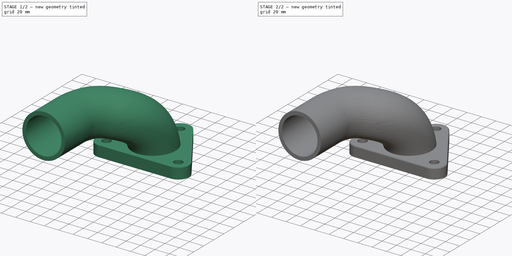
[diagram: build sequence overview — one tinted view per stage of 2, left to right]
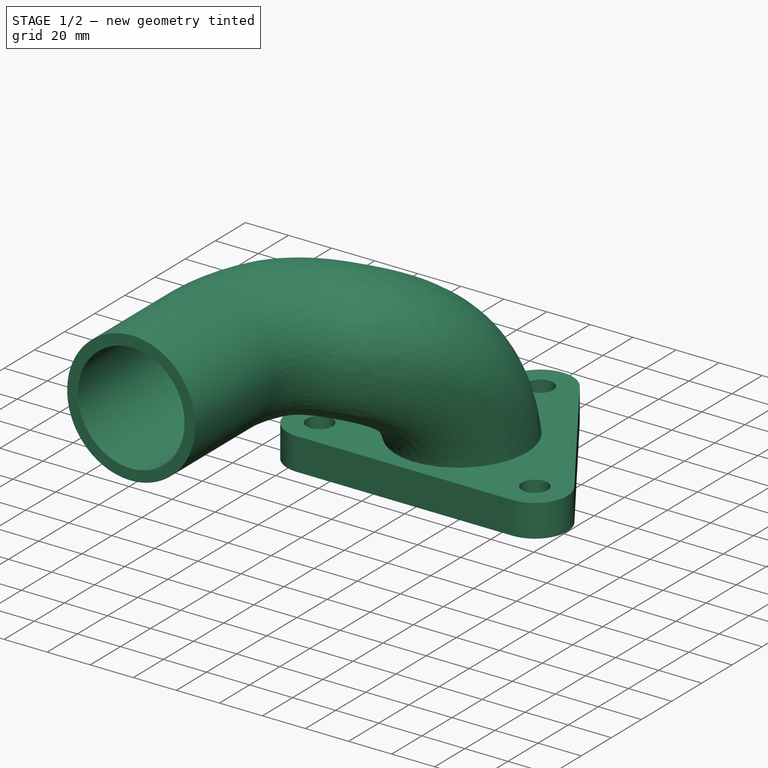
[diagram: stage 1 of 2 — iso view after this stage's code; geometry added in this stage tinted green]
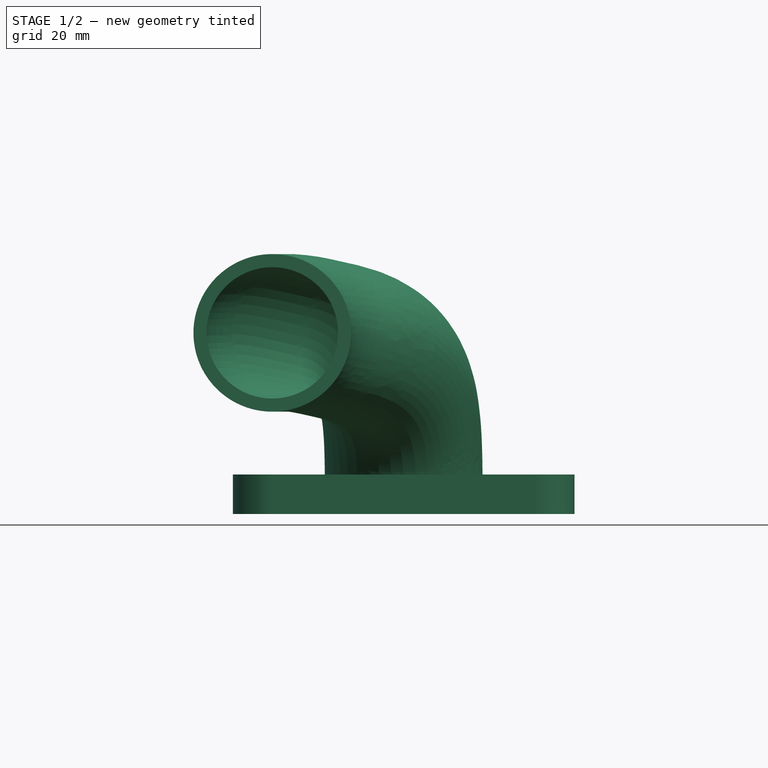
[diagram: stage 1 of 2 — front view after this stage's code; geometry added in this stage tinted green]
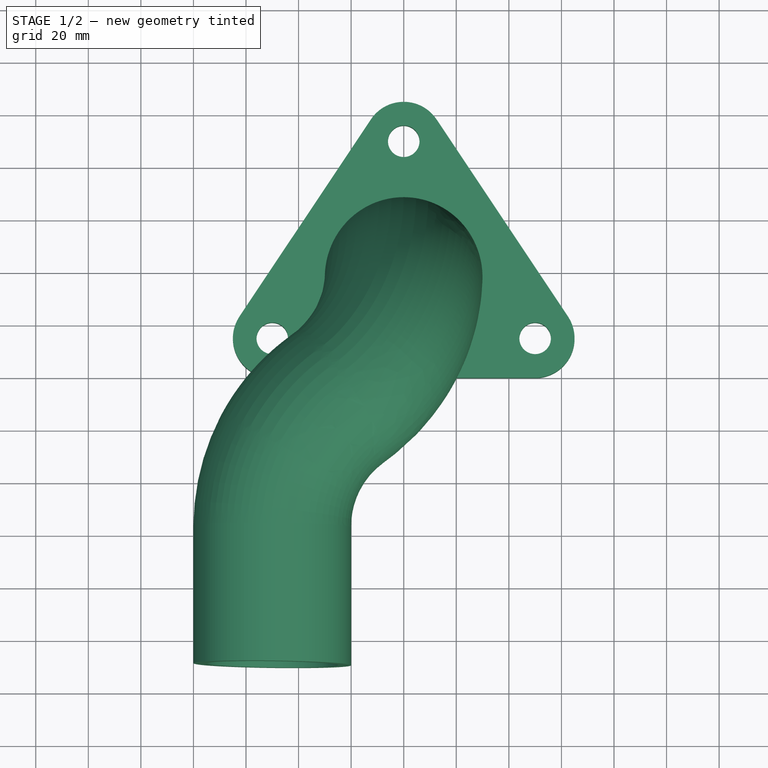
[diagram: stage 1 of 2 — top view after this stage's code; geometry added in this stage tinted green]
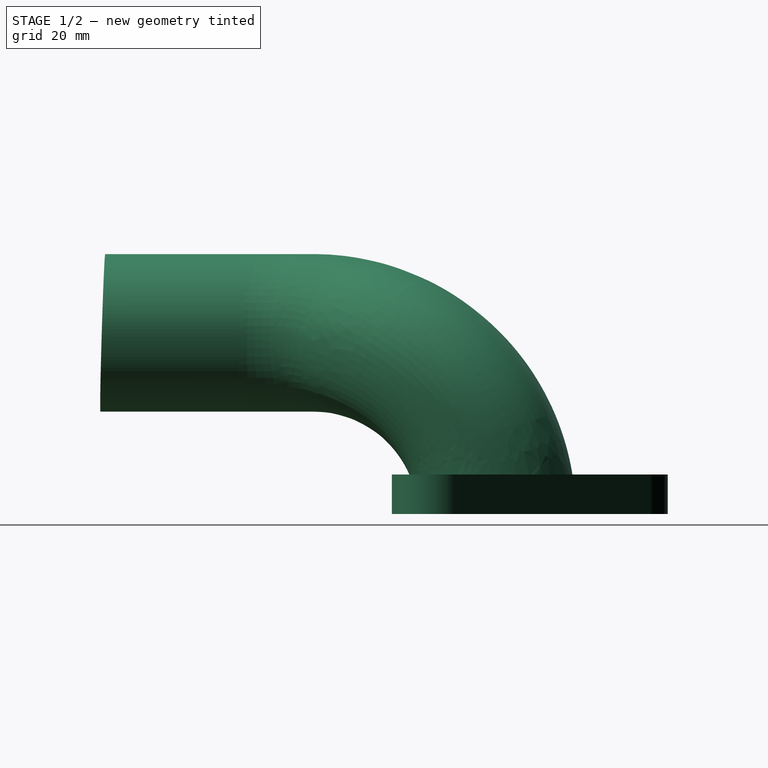
[diagram: stage 1 of 2 — right view after this stage's code; geometry added in this stage tinted green]
FCSTD DOCUMENT  (FreeCAD 0.21R33771 (Git))
Label: ex06
License: All rights reserved
LicenseURL: https://en.wikipedia.org/wiki/All_rights_reserved
objects: Sketcher::SketchObject×4, Part::Extrusion×2, Part::Section×1, PartDesign::ShapeBinder×1, PartDesign::AdditivePipe×1, PartDesign::Pad×1, PartDesign::Pocket×1, PartDesign::Fillet×1, PartDesign::Body×1
note: 17 computed .brp shape members not serialized (recipe doc carries the construction recipe); baked Part::Feature solids carry a one-line shape summary decoded from their .brp

FEATURE [Sketcher::SketchObject] Sketch
  FullyConstrained = true
  MapMode = 5
  Support = -> [XY_Plane]
  sketch-geometry (3):
    g0: ArcOfCircle CenterX=-60 CenterY=-3.75209e-07 CenterZ=0 NormalX=0 NormalY=0 NormalZ=1 AngleXU=0 Radius=60 StartAngle=5.33522 EndAngle=6.28319
    g1: ArcOfCircle CenterX=10 CenterY=-97.4679 CenterZ=0 NormalX=0 NormalY=0 NormalZ=1 AngleXU=0 Radius=60 StartAngle=2.19362 EndAngle=3.14159
    g2: LineSegment StartX=-50 StartY=-97.4679 StartZ=0 EndX=-50 EndY=-150 EndZ=0
  constraints (9):
    c: Coincident(g0,g-1)
    c: Tangent(g1,g0) = 1.5708
    c: Tangent(g0,g-2)
    c: Tangent(g2,g1) = -1.5708
    c: Equal(g0,g1)
    c: Radius(g0) = 60
    c: Vertical(g2)
    c: DistanceX(g2,g-1) = 50
    c: DistanceY(g2,g-1) = 150
FEATURE [Sketcher::SketchObject] Sketch001
  FullyConstrained = false
  MapMode = 5
  Placement = pos=(0,0,0) rot=(0.57735,0.57735,0.57735;2.0944rad)
  Support = -> [YZ_Plane]
  sketch-geometry (3):
    g0: LineSegment StartX=0.0147297 StartY=74.8583 StartZ=0 EndX=0 EndY=0 EndZ=0
    g1: LineSegment StartX=-69.9853 StartY=144.872 StartZ=0 EndX=-149.971 EndY=144.872 EndZ=0
    g2: ArcOfCircle CenterX=-69.9853 CenterY=74.872 CenterZ=0 NormalX=0 NormalY=0 NormalZ=1 AngleXU=0 Radius=70 StartAngle=6.28299 EndAngle=7.85398
  constraints (6):
    c: Coincident(g0,g-1)
    c: Horizontal(g1)
    c: Distance(g1,g0) = 150
    c: Tangent(g1,g2) = -1.5708
    c: Tangent(g0,g2) = 1.5708
    c: Radius(g2) = 70
FEATURE [Part::Extrusion] Extrude
  Base = -> Sketch
  Dir = (0,0,1)
  DirMode = 2
  FaceMakerClass = Part::FaceMakerBullseye
  LengthFwd = 180
  LengthRev = 0
  Solid = false
  Symmetric = false
FEATURE [Part::Extrusion] Extrude001
  Base = -> Sketch001
  Dir = (1,-1e-16,1e-16)
  DirMode = 2
  FaceMakerClass = Part::FaceMakerBullseye
  LengthFwd = -250
  LengthRev = 0
  Solid = false
  Symmetric = false
FEATURE [Sketcher::SketchObject] Sketch002
  AttachmentOffset = pos=(0,0,1) rot=(0,0,1;0rad)
  FullyConstrained = true
  MapMode = 5
  Placement = pos=(0,0,1) rot=(0,0,1;0rad)
  Support = -> [XY_Plane]
  sketch-geometry (2):
    g0: Circle CenterX=0 CenterY=0 CenterZ=0 NormalX=0 NormalY=0 NormalZ=1 AngleXU=0 Radius=30
    g1: Circle CenterX=0 CenterY=0 CenterZ=0 NormalX=0 NormalY=0 NormalZ=1 AngleXU=0 Radius=25
  constraints (4):
    c: Coincident(g0,g-1)
    c: Radius(g0) = 30
    c: Coincident(g1,g0)
    c: Radius(g1) = 25
FEATURE [Sketcher::SketchObject] Sketch003
  FullyConstrained = false
  MapMode = 5
  Support = -> [XY_Plane]
  sketch-geometry (10):
    g0: LineSegment StartX=62.4808 StartY=-16.6795 StartZ=0 EndX=12.4808 EndY=58.3205 EndZ=0
    g1: LineSegment StartX=-12.4808 StartY=58.3205 StartZ=0 EndX=-62.4808 EndY=-16.6795 EndZ=0
    g2: LineSegment StartX=-50 StartY=-40 StartZ=0 EndX=50 EndY=-40 EndZ=0
    g3: Circle CenterX=-8.62543 CenterY=-4.43558 CenterZ=0 NormalX=0 NormalY=0 NormalZ=1 AngleXU=0 Radius=93.8123
    g4: ArcOfCircle CenterX=0 CenterY=50 CenterZ=0 NormalX=0 NormalY=0 NormalZ=1 AngleXU=0 Radius=15 StartAngle=0.588003 EndAngle=2.55359
    g5: ArcOfCircle CenterX=-50 CenterY=-25 CenterZ=0 NormalX=0 NormalY=0 NormalZ=1 AngleXU=0 Radius=15 StartAngle=2.55359 EndAngle=4.71239
    g6: ArcOfCircle CenterX=50 CenterY=-25 CenterZ=0 NormalX=0 NormalY=0 NormalZ=1 AngleXU=0 Radius=15 StartAngle=4.71239 EndAngle=6.87119
    g7: Circle CenterX=0 CenterY=50 CenterZ=0 NormalX=0 NormalY=0 NormalZ=1 AngleXU=0 Radius=6
    g8: Circle CenterX=-50 CenterY=-25 CenterZ=0 NormalX=0 NormalY=0 NormalZ=1 AngleXU=0 Radius=6
    g9: Circle CenterX=50 CenterY=-25 CenterZ=0 NormalX=0 NormalY=0 NormalZ=1 AngleXU=0 Radius=6
  constraints (21):
    c: Horizontal(g2)
    c: Tangent(g1,g4) = -1.5708
    c: Tangent(g0,g4) = -1.5708
    c: Tangent(g1,g5) = -1.5708
    c: Tangent(g2,g5) = -1.5708
    c: Tangent(g2,g6) = -1.5708
    c: Tangent(g0,g6) = -1.5708
    c: Equal(g4,g5)
    c: Equal(g5,g6)
    c: Radius(g6) = 15
    c: DistanceY(g-1,g4) = 50
    c: DistanceY(g6,g-1) = 25
    c: PointOnObject(g4,g-2)
    c: DistanceX(g5,g-1) = 50
    c: DistanceX(g-1,g6) = 50
    c: Coincident(g7,g4)
    c: Coincident(g8,g5)
    c: Coincident(g9,g6)
    c: Equal(g7,g8)
    c: Equal(g8,g9)
    c: Radius(g7) = 6
FEATURE [Part::Section] Section
  Approximation = false
  Base = -> Extrude
  Placement = pos=(0,0,-76) rot=(0,0,1;0rad)
  Tool = -> Extrude001
FEATURE [PartDesign::ShapeBinder] ReferenceSection
  Placement = pos=(0,0,-76) rot=(0,0,1;0rad)
  Support = -> [Section]
  TraceSupport = false
FEATURE [PartDesign::AdditivePipe] AdditivePipe
  AuxilleryCurvelinear = true
  AuxillerySpineTangent = false
  Binormal = (0,0,0)
  Mode = 0
  Profile = -> Sketch002
  Spine = -> ReferenceSection [Edge4,Edge3,Edge2,Edge1]
  SpineTangent = false
  Transformation = 0
  Transition = 0
FEATURE [PartDesign::Pad] Pad
  BaseFeature = -> AdditivePipe
  Direction = (0,0,1)
  Length = 15
  Length2 = 10
  Profile = -> Sketch003
  ReferenceAxis = -> Sketch003 [N_Axis]
  Type = 0
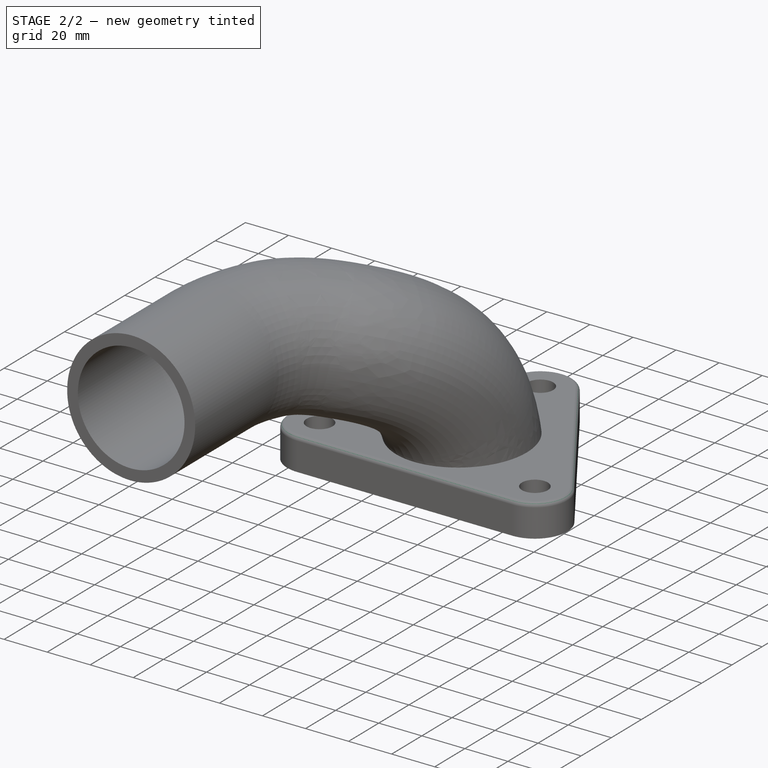
[diagram: stage 2 of 2 — iso view after this stage's code; geometry added in this stage tinted green]
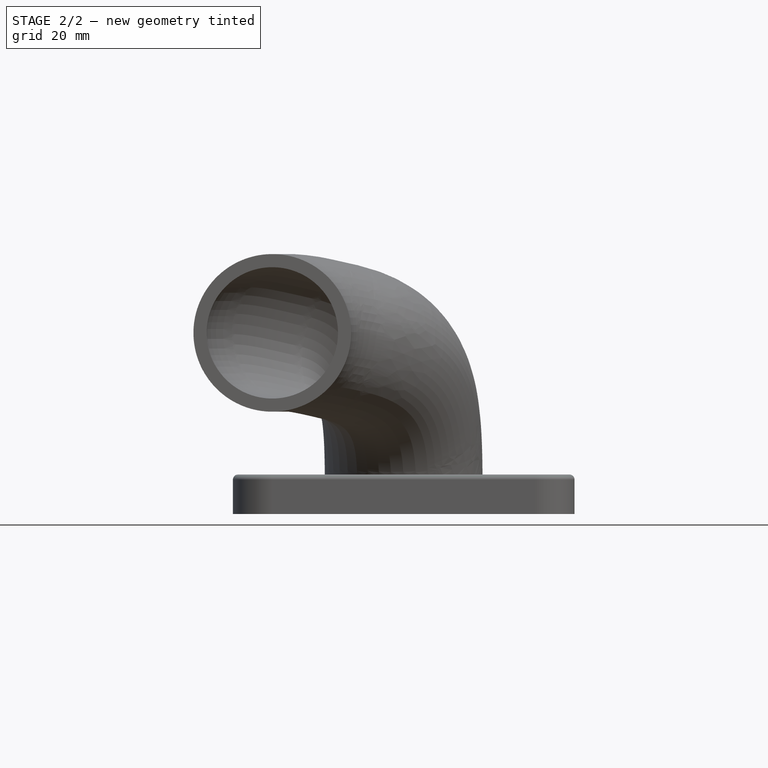
[diagram: stage 2 of 2 — front view after this stage's code; geometry added in this stage tinted green]
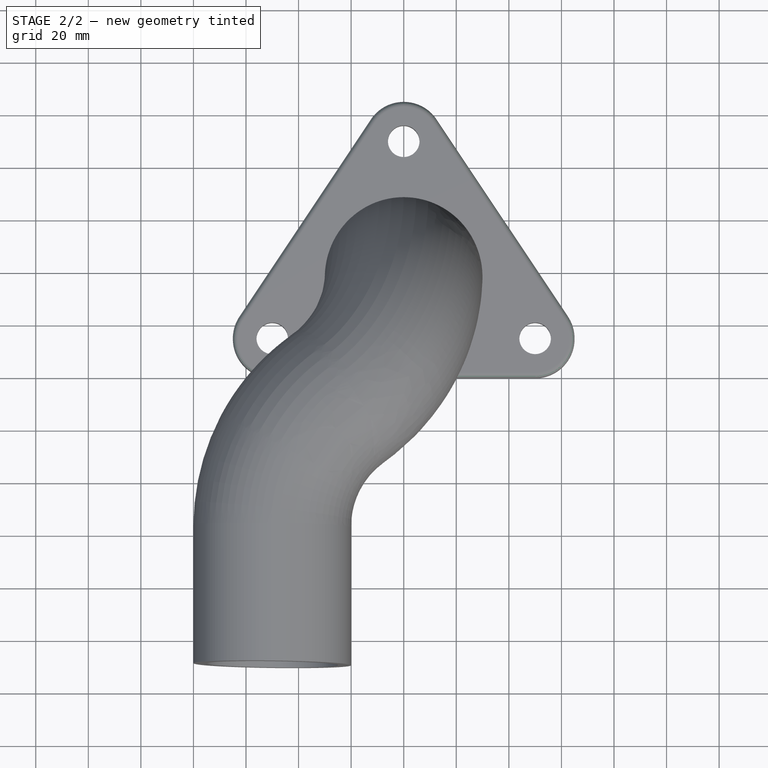
[diagram: stage 2 of 2 — top view after this stage's code; geometry added in this stage tinted green]
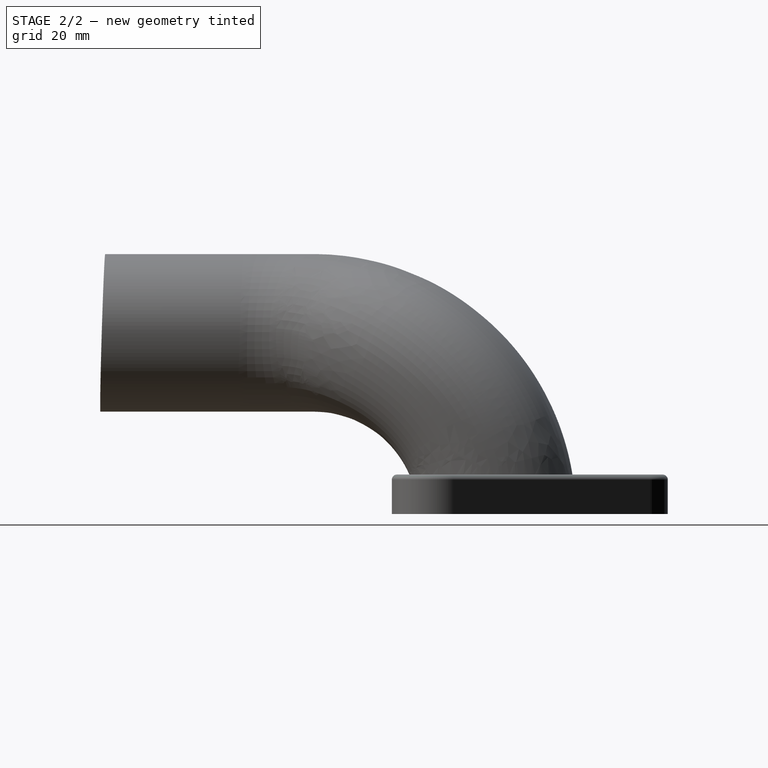
[diagram: stage 2 of 2 — right view after this stage's code; geometry added in this stage tinted green]
FEATURE [PartDesign::Pocket] Pocket
  BaseFeature = -> Pad
  Direction = (0,0,-1)
  Length = 5
  Length2 = 5
  Profile = -> Pad [Edge44]
  Type = 1
FEATURE [PartDesign::Fillet] Fillet
  Base = -> Pocket [Edge4]
  BaseFeature = -> Pocket
  Radius = 2
  SupportTransform = false
  UseAllEdges = false
FEATURE [PartDesign::Body] Body
  Group = -> [Sketch,Sketch001,Sketch002,Sketch003,AdditivePipe,ReferenceSection,Pad,Pocket,Fillet]
  Origin = -> Origin
  Tip = -> Fillet
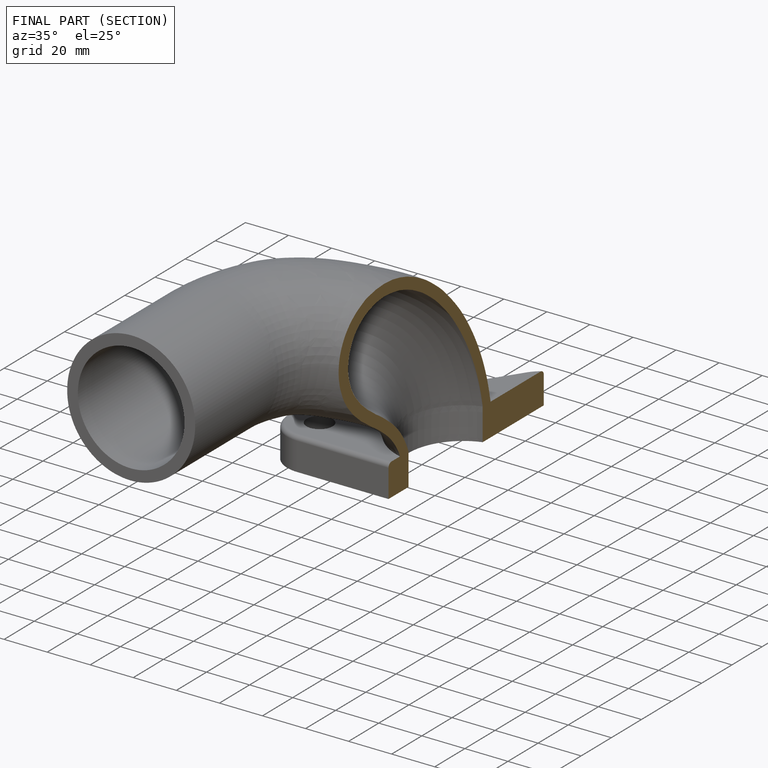
[diagram: finished part — half-section view (interior)]
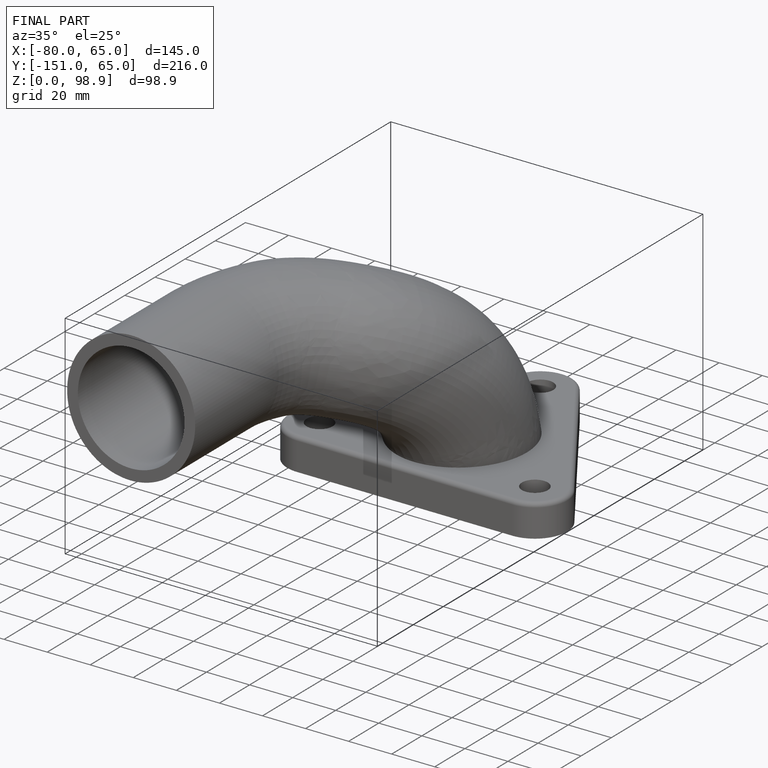
[diagram: finished part — iso view with bounding-box wireframe]
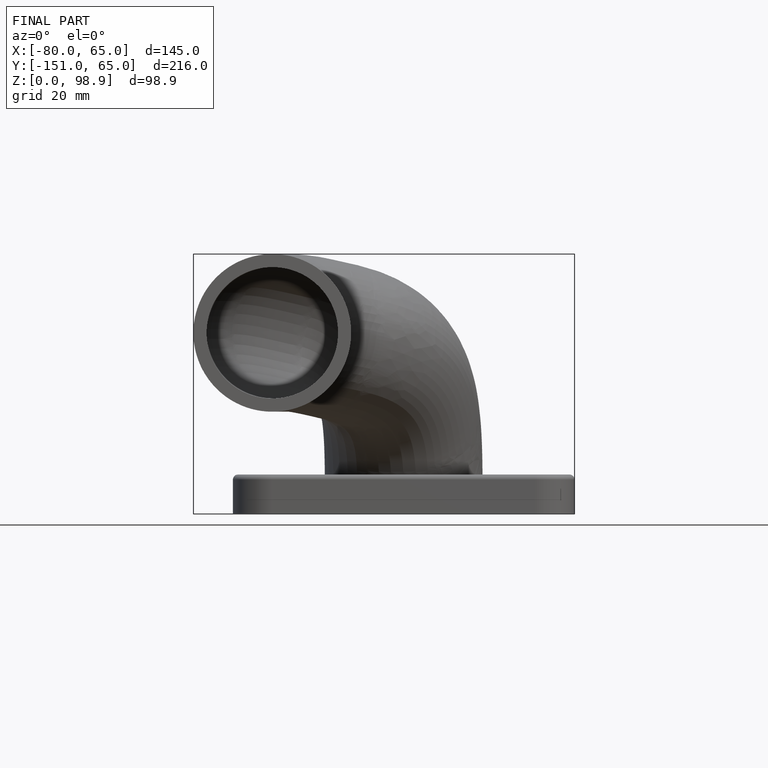
[diagram: finished part — front view with bounding-box wireframe]
